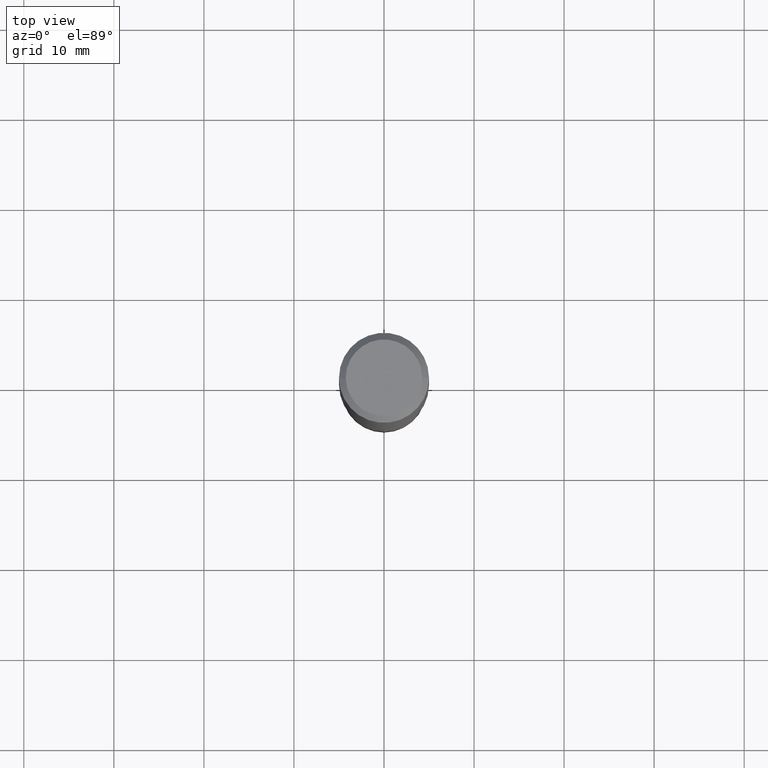
[diagram: clean part render]
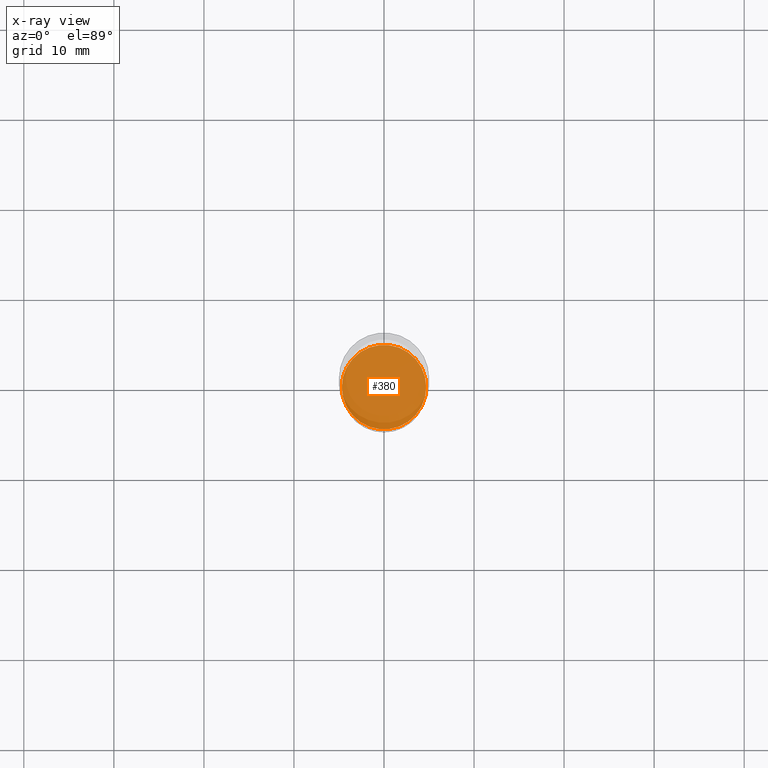
[diagram: x-ray — body ghosted, one internal face saturated and labeled with its STEP entity id]
A machine part, top view, then the same camera in x-ray: the body is ghosted and one INTERNAL B-rep face — a face not visible from any outside direction — is saturated and labeled: STEP entity #380.
In plain terms, the highlighted planar face has unit normal (-0, 0, 1).
Its self-contained STEP definition (entity closure, byte-faithful):
#12 = CARTESIAN_POINT ( 'NONE',  ( 5.814346633585781088E-29, -8.301346031233465092E-15, -2.377600000000000158 ) ) ;
#17 = DIRECTION ( 'NONE',  ( -2.438088387897960049E-29, 3.491481338843145188E-15, 1.000000000000000000 ) ) ;
#43 = CIRCLE ( 'NONE', #436, 0.1845499999999999363 ) ;
#75 = DIRECTION ( 'NONE',  ( 1.000000000000000000, -6.982962677686265922E-15, 4.876176775795935793E-29 ) ) ;
#78 = DIRECTION ( 'NONE',  ( 1.000000000000000000, -6.982962677686270655E-15, 0.000000000000000000 ) ) ;
#84 = CARTESIAN_POINT ( 'NONE',  ( 5.814346633585781088E-29, -8.301346031233465092E-15, -2.377600000000000158 ) ) ;
#87 = EDGE_CURVE ( 'NONE', #197, #154, #43, .T. ) ;
#89 = CARTESIAN_POINT ( 'NONE',  ( 0.1845499999999999363, -9.590051793400465569E-15, -2.377600000000000158 ) ) ;
#103 = EDGE_LOOP ( 'NONE', ( #431, #157 ) ) ;
#122 = PLANE ( 'NONE',  #331 ) ;
#154 = VERTEX_POINT ( 'NONE', #391 ) ;
#157 = ORIENTED_EDGE ( 'NONE', *, *, #320, .F. ) ;
#197 = VERTEX_POINT ( 'NONE', #89 ) ;
#231 = DIRECTION ( 'NONE',  ( -2.445468806185136597E-29, 3.491481338843145583E-15, 1.000000000000000000 ) ) ;
#263 = FACE_OUTER_BOUND ( 'NONE', #103, .T. ) ;
#290 = CIRCLE ( 'NONE', #294, 0.1845499999999999363 ) ;
#294 = AXIS2_PLACEMENT_3D ( 'NONE', #346, #454, #78 ) ;
#320 = EDGE_CURVE ( 'NONE', #154, #197, #290, .T. ) ;
#331 = AXIS2_PLACEMENT_3D ( 'NONE', #12, #17, #75 ) ;
#346 = CARTESIAN_POINT ( 'NONE',  ( 5.814346633585781088E-29, -8.301346031233465092E-15, -2.377600000000000158 ) ) ;
#373 = DIRECTION ( 'NONE',  ( 1.000000000000000000, -6.982962677686270655E-15, 0.000000000000000000 ) ) ;
#380 = ADVANCED_FACE ( 'NONE', ( #263 ), #122, .F. ) ;
#391 = CARTESIAN_POINT ( 'NONE',  ( -0.1845499999999999363, -6.987390185214089056E-15, -2.377600000000000158 ) ) ;
#431 = ORIENTED_EDGE ( 'NONE', *, *, #87, .F. ) ;
#436 = AXIS2_PLACEMENT_3D ( 'NONE', #84, #231, #373 ) ;
#454 = DIRECTION ( 'NONE',  ( -2.445468806185136597E-29, 3.491481338843145583E-15, 1.000000000000000000 ) ) ;